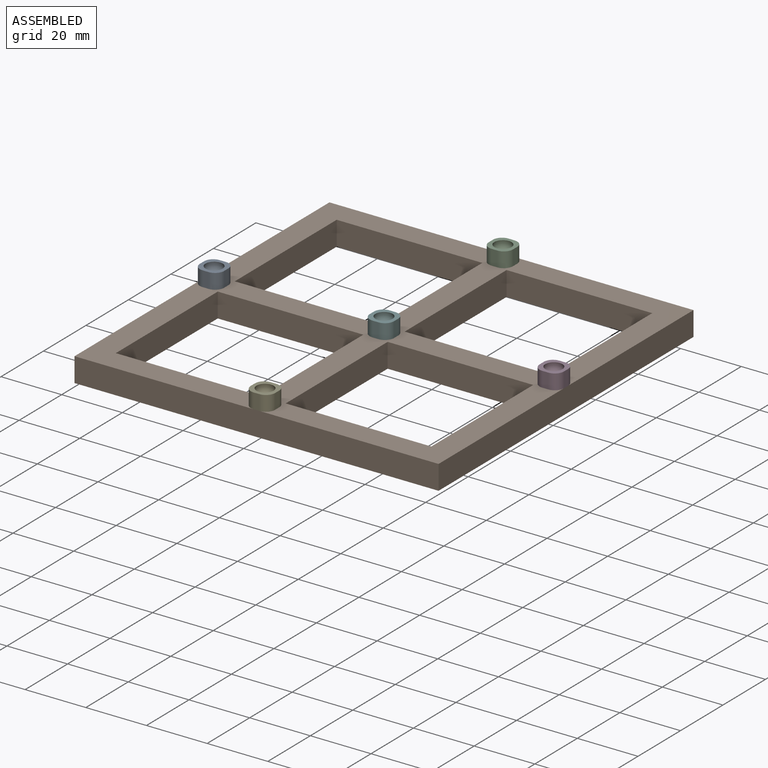
[diagram: assembled view]
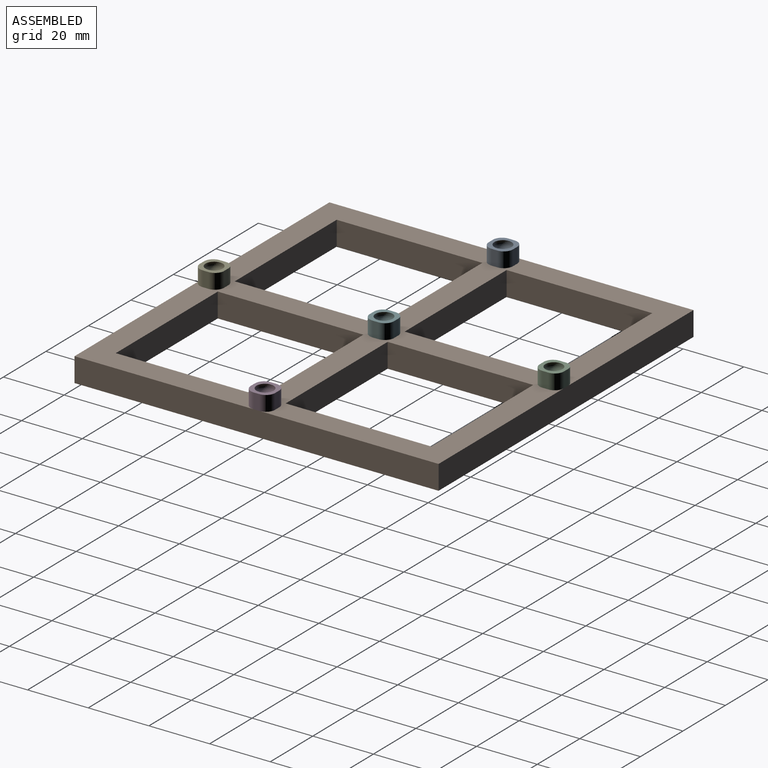
[diagram: assembled view, second angle]
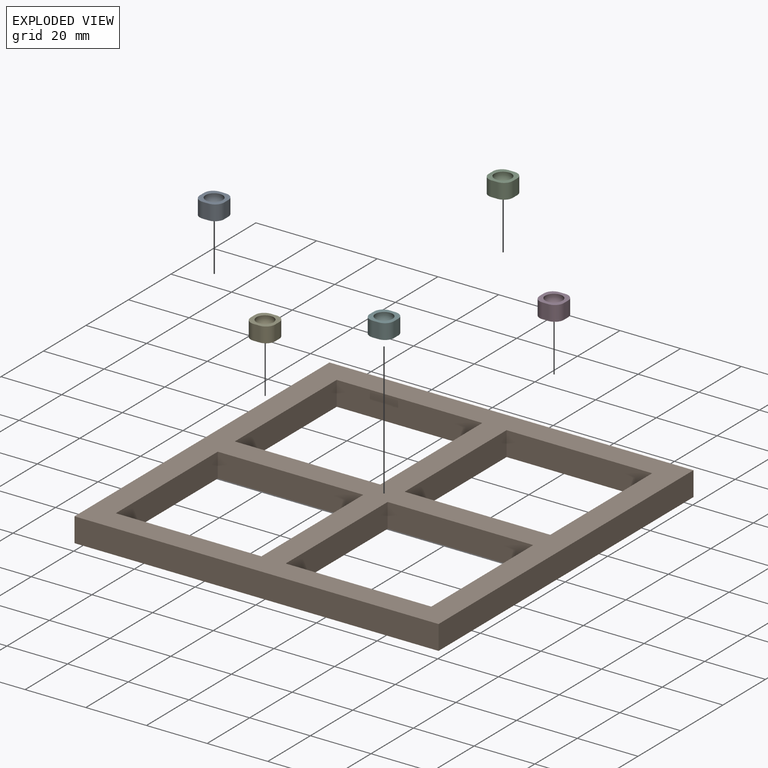
[diagram: exploded view]
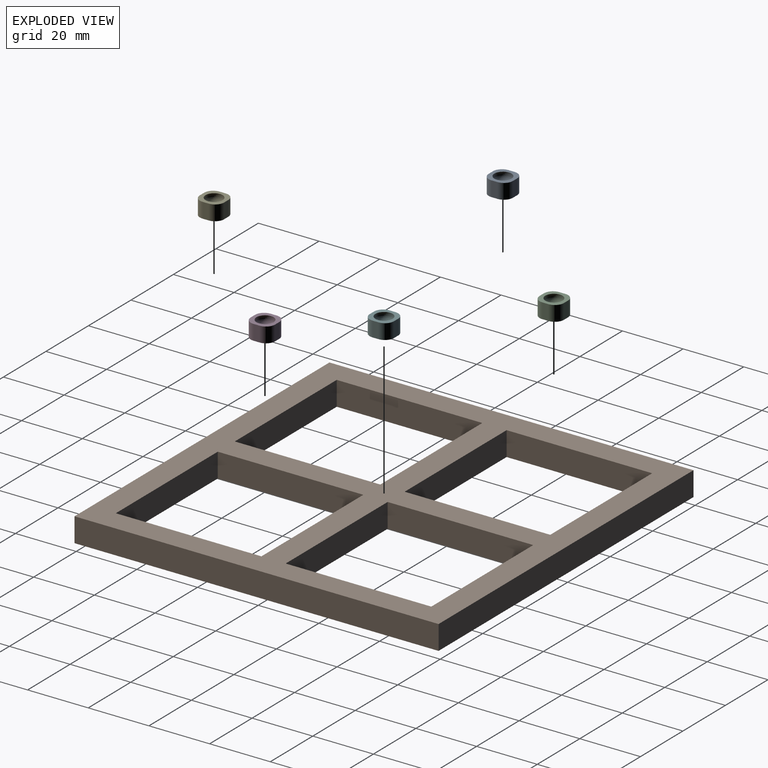
[diagram: exploded view, second angle]
ASSEMBLY  parts=6 mates=5
PART A: 11 faces, bbox 8x8x5 mm
  f0: plane 8x8mm, normal (0,0,-1), area 56.3mm2, adj f3,f4,f5,f6,f7,f8,f9,f10
  f1: sphere r=3mm, area 75.4mm2, adj f2
  f2: plane 8x8mm, normal (0,0,1), area 31.1mm2, adj f1,f3,f4,f5,f6,f7,f8,f9
  f3: plane 5x2mm, normal (1,0,0), area 10mm2, adj f0,f2,f9,f10
  f4: plane 5x2mm, normal (0,1,0), area 10mm2, adj f0,f2,f8,f9
  f5: plane 5x2mm, normal (-1,0,0), area 10mm2, adj f0,f2,f7,f8
  f6: plane 5x2mm, normal (0,-1,0), area 10mm2, adj f0,f2,f7,f10
  f7: cylinder r=3mm len=5mm, axis (0,0,-1), area 23.6mm2, adj f0,f2,f5,f6
  f8: cylinder r=3mm len=5mm, axis (0,0,1), area 23.6mm2, adj f0,f2,f4,f5
  f9: cylinder r=3mm len=5mm, axis (0,0,-1), area 23.6mm2, adj f0,f2,f3,f4
  f10: cylinder r=3mm len=5mm, axis (0,0,1), area 23.6mm2, adj f0,f2,f3,f6
PART B: 22 faces, bbox 120x120x8 mm
  f0: plane 48x8mm, normal (1,0,0), area 384mm2, adj f2,f4,f8,f10
  f1: plane 48x8mm, normal (-1,0,0), area 384mm2, adj f2,f4,f7,f21
  f2: plane 120x120mm, normal (0,0,1), area 5184mm2, adj f0,f1,f3,f5,f6,f7,f8,f9
  f3: plane 48x8mm, normal (1,0,0), area 384mm2, adj f2,f4,f9,f11
  f4: plane 120x120mm, normal (0,0,-1), area 5184mm2, adj f0,f1,f3,f5,f6,f7,f8,f9
  f5: plane 48x8mm, normal (-1,0,0), area 384mm2, adj f2,f4,f6,f15
  f6: plane 48x8mm, normal (0,1,0), area 384mm2, adj f2,f4,f5,f12
  f7: plane 48x8mm, normal (0,-1,0), area 384mm2, adj f1,f2,f4,f17
  f8: plane 48x8mm, normal (0,-1,0), area 384mm2, adj f0,f2,f4,f13
  f9: plane 48x8mm, normal (0,1,0), area 384mm2, adj f2,f3,f4,f19
  f10: plane 48x8mm, normal (0,1,0), area 384mm2, adj f0,f2,f4,f13
  f11: plane 48x8mm, normal (0,-1,0), area 384mm2, adj f2,f3,f4,f19
  f12: plane 48x8mm, normal (1,0,0), area 384mm2, adj f2,f4,f6,f15
  f13: plane 48x8mm, normal (-1,0,0), area 384mm2, adj f2,f4,f8,f10
  f14: plane 120x8mm, normal (0,1,0), area 960mm2, adj f2,f4,f16,f18
  f15: plane 48x8mm, normal (0,-1,0), area 384mm2, adj f2,f4,f5,f12
  f16: plane 120x8mm, normal (-1,0,0), area 960mm2, adj f2,f4,f14,f20
  f17: plane 48x8mm, normal (1,0,0), area 384mm2, adj f2,f4,f7,f21
  f18: plane 120x8mm, normal (1,0,0), area 960mm2, adj f2,f4,f14,f20
  f19: plane 48x8mm, normal (-1,0,0), area 384mm2, adj f2,f4,f9,f11
  f20: plane 120x8mm, normal (0,-1,0), area 960mm2, adj f2,f4,f16,f18
  f21: plane 48x8mm, normal (0,1,0), area 384mm2, adj f1,f2,f4,f17
PART C: same geometry as A
PART D: same geometry as A
PART E: same geometry as A
PART F: same geometry as A
PLACE A t=(-55.57,-0.23,-11.03)mm
PLACE B t=(0.43,-0.23,-15.03)mm
PLACE C t=(0.43,55.77,-11.03)mm
PLACE D t=(56.43,-0.23,-11.03)mm
PLACE E t=(0.43,-56.23,-11.03)mm
PLACE F t=(0.43,-0.23,-11.03)mm
MATE fastened F.f0 <-> B.f2  axis (0,0,-1) through (0.43,-0.23,-11.03)mm
MATE fastened C.f0 <-> B.f2  axis (0,0,-1) through (0.43,55.77,-11.03)mm
MATE fastened E.f0 <-> B.f2  axis (0,0,-1) through (0.43,-56.23,-11.03)mm
MATE fastened A.f0 <-> B.f2  axis (0,0,-1) through (-55.57,-0.23,-11.03)mm
MATE fastened D.f0 <-> B.f2  axis (0,0,-1) through (56.43,-0.23,-11.03)mm
